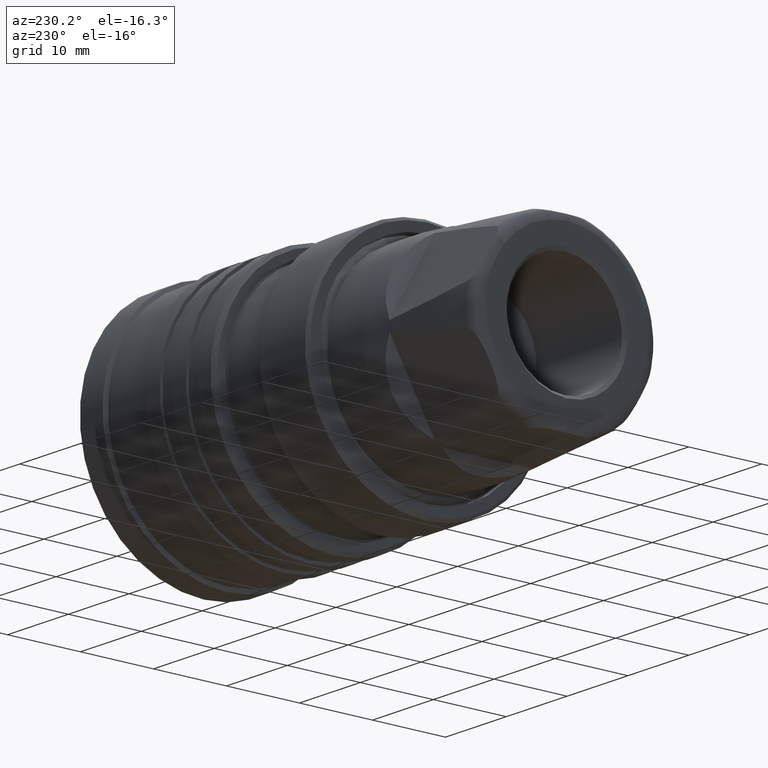
[diagram: clean part render]
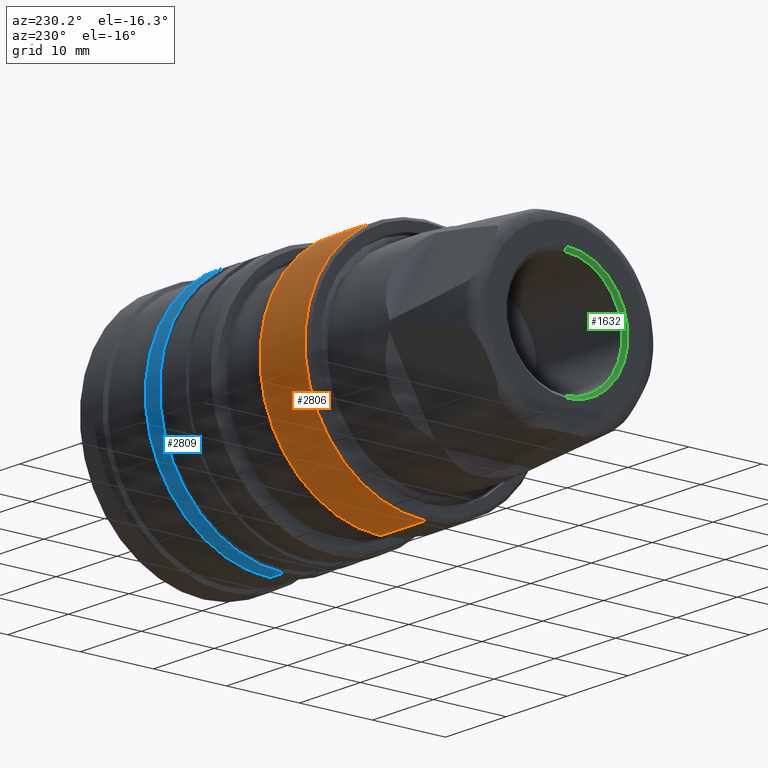
[diagram: same view with three faces highlighted in distinct colors, each labeled with its STEP entity id]
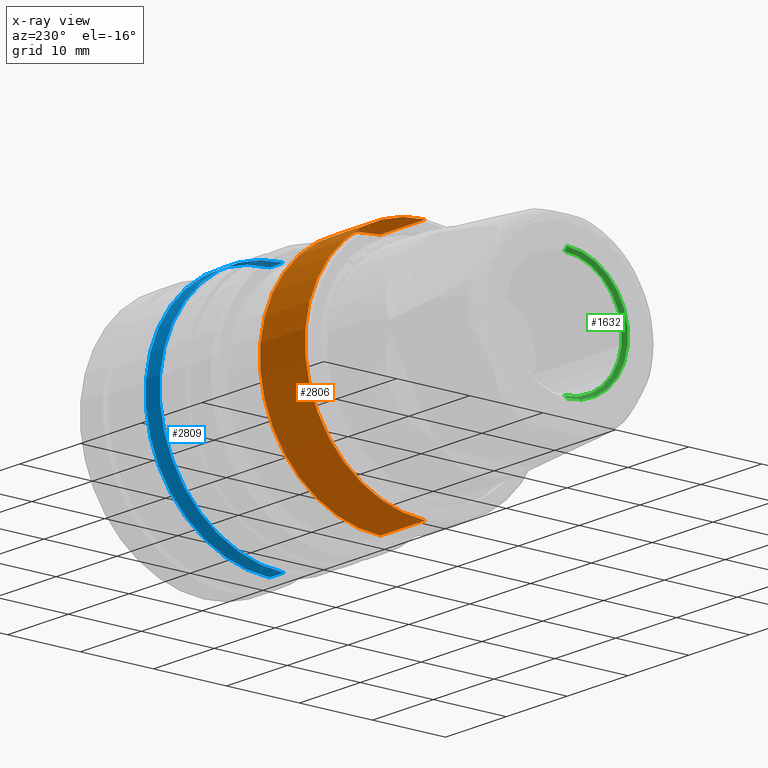
[diagram: x-ray of the same camera — body ghosted, the three highlighted faces saturated]
A machine part, auxiliary view with three faces highlighted in distinct colors.
The next image is the same camera in x-ray (body ghosted, the three faces saturated) — at least one of them is partly hidden behind the body in this view.
Their STEP definitions:

[orange] entity #2806 — the highlighted cylindrical surface (partial cylindrical patch) has radius 16.5 mm, axis along (-1, 0, 0).
#277 = AXIS2_PLACEMENT_3D ( 'NONE', #1260, #1261, #1262 ) ;
#401 = DIRECTION ( 'NONE',  ( -1.000000000000000000, 0.0000000000000000000, 0.0000000000000000000 ) ) ;
#402 = CARTESIAN_POINT ( 'NONE',  ( 76.95419073289978900, 0.0000000000000000000, 16.49999999999575100 ) ) ;
#404 = DIRECTION ( 'NONE',  ( -1.000000000000000000, 0.0000000000000000000, 0.0000000000000000000 ) ) ;
#405 = CARTESIAN_POINT ( 'NONE',  ( 76.95419073289978900, 2.020667218592612500E-015, -16.49999999999575100 ) ) ;
#406 = DIRECTION ( 'NONE',  ( 0.0000000000000000000, 0.0000000000000000000, 1.000000000000000000 ) ) ;
#408 = DIRECTION ( 'NONE',  ( -1.000000000000000000, 0.0000000000000000000, 0.0000000000000000000 ) ) ;
#409 = CARTESIAN_POINT ( 'NONE',  ( 30.69999999999855000, 0.0000000000000000000, 0.0000000000000000000 ) ) ;
#418 = DIRECTION ( 'NONE',  ( 0.0000000000000000000, 0.0000000000000000000, 1.000000000000000000 ) ) ;
#419 = DIRECTION ( 'NONE',  ( -1.000000000000000000, 0.0000000000000000000, 0.0000000000000000000 ) ) ;
#420 = CARTESIAN_POINT ( 'NONE',  ( 23.29999999999185100, 0.0000000000000000000, 0.0000000000000000000 ) ) ;
#544 = AXIS2_PLACEMENT_3D ( 'NONE', #420, #419, #418 ) ;
#546 = AXIS2_PLACEMENT_3D ( 'NONE', #409, #408, #406 ) ;
#615 = EDGE_LOOP ( 'NONE', ( #847, #838, #849, #846 ) ) ;
#838 = ORIENTED_EDGE ( 'NONE', *, *, #4286, .T. ) ;
#846 = ORIENTED_EDGE ( 'NONE', *, *, #4287, .F. ) ;
#847 = ORIENTED_EDGE ( 'NONE', *, *, #4285, .T. ) ;
#849 = ORIENTED_EDGE ( 'NONE', *, *, #4281, .F. ) ;
#1260 = CARTESIAN_POINT ( 'NONE',  ( 76.95419073289978900, 0.0000000000000000000, 0.0000000000000000000 ) ) ;
#1261 = DIRECTION ( 'NONE',  ( -1.000000000000000000, 0.0000000000000000000, 0.0000000000000000000 ) ) ;
#1262 = DIRECTION ( 'NONE',  ( 0.0000000000000000000, 0.0000000000000000000, 1.000000000000000000 ) ) ;
#1286 = CARTESIAN_POINT ( 'NONE',  ( 23.29999999999185100, 0.0000000000000000000, 16.49999999999575100 ) ) ;
#1534 = CIRCLE ( 'NONE', #544, 16.49999999999575100 ) ;
#1537 = VECTOR ( 'NONE', #404, 1000.000000000000000 ) ;
#1542 = LINE ( 'NONE', #402, #1544 ) ;
#1544 = VECTOR ( 'NONE', #401, 1000.000000000000000 ) ;
#1547 = CIRCLE ( 'NONE', #546, 16.49999999999575100 ) ;
#1557 = LINE ( 'NONE', #405, #1537 ) ;
#1794 = VERTEX_POINT ( 'NONE', #1286 ) ;
#2023 = CARTESIAN_POINT ( 'NONE',  ( 23.29999999999185100, 2.020667218592612500E-015, -16.49999999999575100 ) ) ;
#2360 = CARTESIAN_POINT ( 'NONE',  ( 30.69999999999855000, 0.0000000000000000000, 16.49999999999575100 ) ) ;
#2686 = CARTESIAN_POINT ( 'NONE',  ( 30.69999999999855000, 2.020667218592612500E-015, -16.49999999999575100 ) ) ;
#2806 = ADVANCED_FACE ( 'NONE', ( #3659 ), #3601, .T. ) ;
#3171 = VERTEX_POINT ( 'NONE', #2686 ) ;
#3311 = VERTEX_POINT ( 'NONE', #2360 ) ;
#3400 = VERTEX_POINT ( 'NONE', #2023 ) ;
#3601 = CYLINDRICAL_SURFACE ( 'NONE', #277, 16.49999999999575100 ) ;
#3659 = FACE_OUTER_BOUND ( 'NONE', #615, .T. ) ;
#4281 = EDGE_CURVE ( 'NONE', #1794, #3400, #1534, .T. ) ;
#4285 = EDGE_CURVE ( 'NONE', #3311, #3171, #1547, .T. ) ;
#4286 = EDGE_CURVE ( 'NONE', #3171, #3400, #1557, .T. ) ;
#4287 = EDGE_CURVE ( 'NONE', #3311, #1794, #1542, .T. ) ;

[blue] entity #2809 — the highlighted cylindrical surface (partial cylindrical patch) has radius 17 mm, axis along (-1, 0, 0).
#284 = AXIS2_PLACEMENT_3D ( 'NONE', #2750, #2747, #2744 ) ;
#354 = DIRECTION ( 'NONE',  ( -1.000000000000000000, 0.0000000000000000000, 0.0000000000000000000 ) ) ;
#355 = CARTESIAN_POINT ( 'NONE',  ( 76.95419073289978900, 2.081899558549986300E-015, -16.99999999999580100 ) ) ;
#459 = DIRECTION ( 'NONE',  ( 0.0000000000000000000, 0.0000000000000000000, 1.000000000000000000 ) ) ;
#460 = DIRECTION ( 'NONE',  ( -1.000000000000000000, 0.0000000000000000000, 0.0000000000000000000 ) ) ;
#461 = CARTESIAN_POINT ( 'NONE',  ( 48.91132486539800100, 0.0000000000000000000, 0.0000000000000000000 ) ) ;
#463 = DIRECTION ( 'NONE',  ( -1.000000000000000000, 0.0000000000000000000, 0.0000000000000000000 ) ) ;
#464 = CARTESIAN_POINT ( 'NONE',  ( 76.95419073289978900, 0.0000000000000000000, 16.99999999999580100 ) ) ;
#523 = AXIS2_PLACEMENT_3D ( 'NONE', #1887, #1886, #1885 ) ;
#535 = AXIS2_PLACEMENT_3D ( 'NONE', #461, #460, #459 ) ;
#650 = EDGE_LOOP ( 'NONE', ( #1076, #1070, #1084, #1083 ) ) ;
#1070 = ORIENTED_EDGE ( 'NONE', *, *, #4266, .T. ) ;
#1076 = ORIENTED_EDGE ( 'NONE', *, *, #4269, .T. ) ;
#1083 = ORIENTED_EDGE ( 'NONE', *, *, #4268, .F. ) ;
#1084 = ORIENTED_EDGE ( 'NONE', *, *, #4243, .F. ) ;
#1341 = CARTESIAN_POINT ( 'NONE',  ( 48.91132486539800100, 0.0000000000000000000, 16.99999999999580100 ) ) ;
#1774 = VERTEX_POINT ( 'NONE', #1341 ) ;
#1822 = CIRCLE ( 'NONE', #535, 16.99999999999580100 ) ;
#1830 = VECTOR ( 'NONE', #463, 1000.000000000000000 ) ;
#1832 = LINE ( 'NONE', #464, #1830 ) ;
#1839 = VECTOR ( 'NONE', #354, 1000.000000000000000 ) ;
#1871 = LINE ( 'NONE', #355, #1839 ) ;
#1885 = DIRECTION ( 'NONE',  ( 0.0000000000000000000, 0.0000000000000000000, 1.000000000000000000 ) ) ;
#1886 = DIRECTION ( 'NONE',  ( -1.000000000000000000, 0.0000000000000000000, 0.0000000000000000000 ) ) ;
#1887 = CARTESIAN_POINT ( 'NONE',  ( 46.59999999999300300, 0.0000000000000000000, 0.0000000000000000000 ) ) ;
#1991 = CARTESIAN_POINT ( 'NONE',  ( 46.59999999999300300, 0.0000000000000000000, 16.99999999999580100 ) ) ;
#1994 = CIRCLE ( 'NONE', #523, 16.99999999999580100 ) ;
#2061 = CARTESIAN_POINT ( 'NONE',  ( 48.91132486539800100, 2.081899558549986300E-015, -16.99999999999580100 ) ) ;
#2656 = CARTESIAN_POINT ( 'NONE',  ( 46.59999999999300300, 2.081899558549986300E-015, -16.99999999999580100 ) ) ;
#2744 = DIRECTION ( 'NONE',  ( 0.0000000000000000000, 0.0000000000000000000, 1.000000000000000000 ) ) ;
#2747 = DIRECTION ( 'NONE',  ( -1.000000000000000000, 0.0000000000000000000, 0.0000000000000000000 ) ) ;
#2750 = CARTESIAN_POINT ( 'NONE',  ( 76.95419073289978900, 0.0000000000000000000, 0.0000000000000000000 ) ) ;
#2809 = ADVANCED_FACE ( 'NONE', ( #3556 ), #3705, .T. ) ;
#3213 = VERTEX_POINT ( 'NONE', #2656 ) ;
#3395 = VERTEX_POINT ( 'NONE', #2061 ) ;
#3491 = VERTEX_POINT ( 'NONE', #1991 ) ;
#3556 = FACE_OUTER_BOUND ( 'NONE', #650, .T. ) ;
#3705 = CYLINDRICAL_SURFACE ( 'NONE', #284, 16.99999999999580100 ) ;
#4243 = EDGE_CURVE ( 'NONE', #3491, #3213, #1994, .T. ) ;
#4266 = EDGE_CURVE ( 'NONE', #3395, #3213, #1871, .T. ) ;
#4268 = EDGE_CURVE ( 'NONE', #1774, #3491, #1832, .T. ) ;
#4269 = EDGE_CURVE ( 'NONE', #1774, #3395, #1822, .T. ) ;

[green] entity #1632 — the highlighted conical surface has half-angle 45 deg.
#80 = AXIS2_PLACEMENT_3D ( 'NONE', #3180, #3070, #3284 ) ;
#226 = AXIS2_PLACEMENT_3D ( 'NONE', #3849, #4038, #3853 ) ;
#318 = AXIS2_PLACEMENT_3D ( 'NONE', #2052, #2186, #2183 ) ;
#670 = EDGE_LOOP ( 'NONE', ( #1166, #1167, #1168, #1169 ) ) ;
#1166 = ORIENTED_EDGE ( 'NONE', *, *, #1734, .F. ) ;
#1167 = ORIENTED_EDGE ( 'NONE', *, *, #4129, .T. ) ;
#1168 = ORIENTED_EDGE ( 'NONE', *, *, #3750, .T. ) ;
#1169 = ORIENTED_EDGE ( 'NONE', *, *, #3753, .F. ) ;
#1326 = CARTESIAN_POINT ( 'NONE',  ( 0.4469999999999749700, 0.0000000000000000000, 7.902999999999320100 ) ) ;
#1455 = CIRCLE ( 'NONE', #226, 7.902999999999320100 ) ;
#1632 = ADVANCED_FACE ( 'NONE', ( #4412 ), #4411, .F. ) ;
#1734 = EDGE_CURVE ( 'NONE', #3333, #1781, #1455, .T. ) ;
#1781 = VERTEX_POINT ( 'NONE', #1326 ) ;
#2052 = CARTESIAN_POINT ( 'NONE',  ( 0.0000000000000000000, 0.0000000000000000000, 0.0000000000000000000 ) ) ;
#2183 = DIRECTION ( 'NONE',  ( 0.0000000000000000000, 0.0000000000000000000, 1.000000000000000000 ) ) ;
#2186 = DIRECTION ( 'NONE',  ( -1.000000000000000000, 0.0000000000000000000, 0.0000000000000000000 ) ) ;
#2312 = CARTESIAN_POINT ( 'NONE',  ( 0.4469999999999749700, 9.952092213270139200E-016, -7.902999999999320100 ) ) ;
#2348 = DIRECTION ( 'NONE',  ( -0.7071067811865201500, 8.659560562355270600E-017, -0.7071067811865750000 ) ) ;
#2349 = CARTESIAN_POINT ( 'NONE',  ( 0.0000000000000000000, 1.022580077287957900E-015, -8.349999999999330000 ) ) ;
#2395 = CARTESIAN_POINT ( 'NONE',  ( 0.0000000000000000000, 1.022580077287957900E-015, -8.349999999999330000 ) ) ;
#2406 = DIRECTION ( 'NONE',  ( -0.7071067811865201500, 0.0000000000000000000, 0.7071067811865750000 ) ) ;
#2407 = CARTESIAN_POINT ( 'NONE',  ( 0.0000000000000000000, 0.0000000000000000000, 8.349999999999330000 ) ) ;
#2694 = CARTESIAN_POINT ( 'NONE',  ( 0.0000000000000000000, 0.0000000000000000000, 8.349999999999330000 ) ) ;
#3070 = DIRECTION ( 'NONE',  ( -1.000000000000000000, 0.0000000000000000000, 0.0000000000000000000 ) ) ;
#3164 = VERTEX_POINT ( 'NONE', #2694 ) ;
#3180 = CARTESIAN_POINT ( 'NONE',  ( 0.0000000000000000000, 0.0000000000000000000, 0.0000000000000000000 ) ) ;
#3284 = DIRECTION ( 'NONE',  ( 0.0000000000000000000, 0.0000000000000000000, 1.000000000000000000 ) ) ;
#3293 = VERTEX_POINT ( 'NONE', #2395 ) ;
#3333 = VERTEX_POINT ( 'NONE', #2312 ) ;
#3526 = CIRCLE ( 'NONE', #318, 8.349999999999330000 ) ;
#3539 = VECTOR ( 'NONE', #2406, 999.9999999999998900 ) ;
#3547 = LINE ( 'NONE', #2349, #3713 ) ;
#3631 = LINE ( 'NONE', #2407, #3539 ) ;
#3713 = VECTOR ( 'NONE', #2348, 999.9999999999998900 ) ;
#3750 = EDGE_CURVE ( 'NONE', #3293, #3164, #3526, .T. ) ;
#3753 = EDGE_CURVE ( 'NONE', #1781, #3164, #3631, .T. ) ;
#3849 = CARTESIAN_POINT ( 'NONE',  ( 0.4469999999999749700, 0.0000000000000000000, 0.0000000000000000000 ) ) ;
#3853 = DIRECTION ( 'NONE',  ( 0.0000000000000000000, 0.0000000000000000000, 1.000000000000000000 ) ) ;
#4038 = DIRECTION ( 'NONE',  ( -1.000000000000000000, 0.0000000000000000000, 0.0000000000000000000 ) ) ;
#4129 = EDGE_CURVE ( 'NONE', #3333, #3293, #3547, .T. ) ;
#4411 = CONICAL_SURFACE ( 'NONE', #80, 8.349999999999330000, 0.7853981633974871400 ) ;
#4412 = FACE_OUTER_BOUND ( 'NONE', #670, .T. ) ;